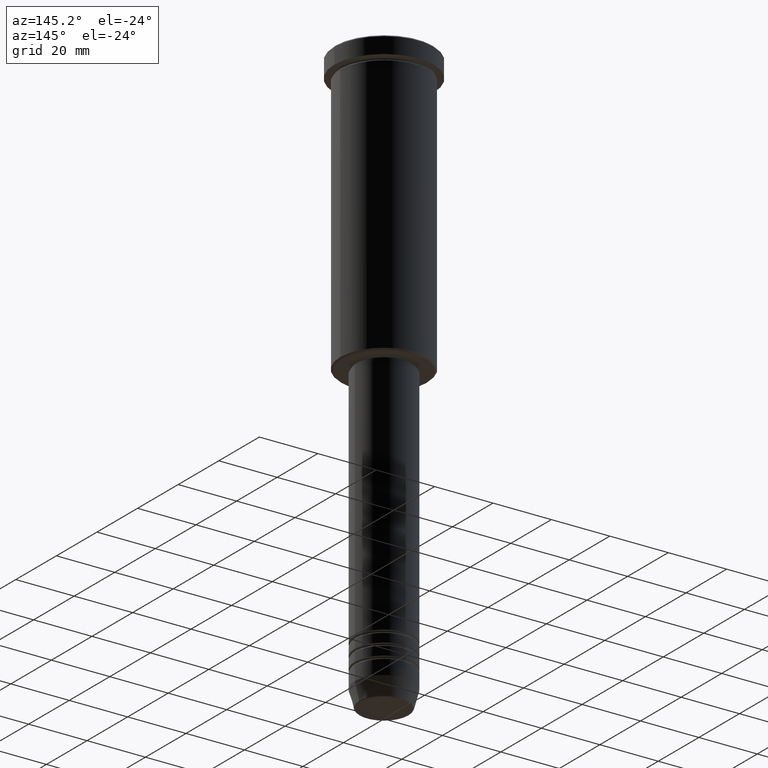
[diagram: clean part render]
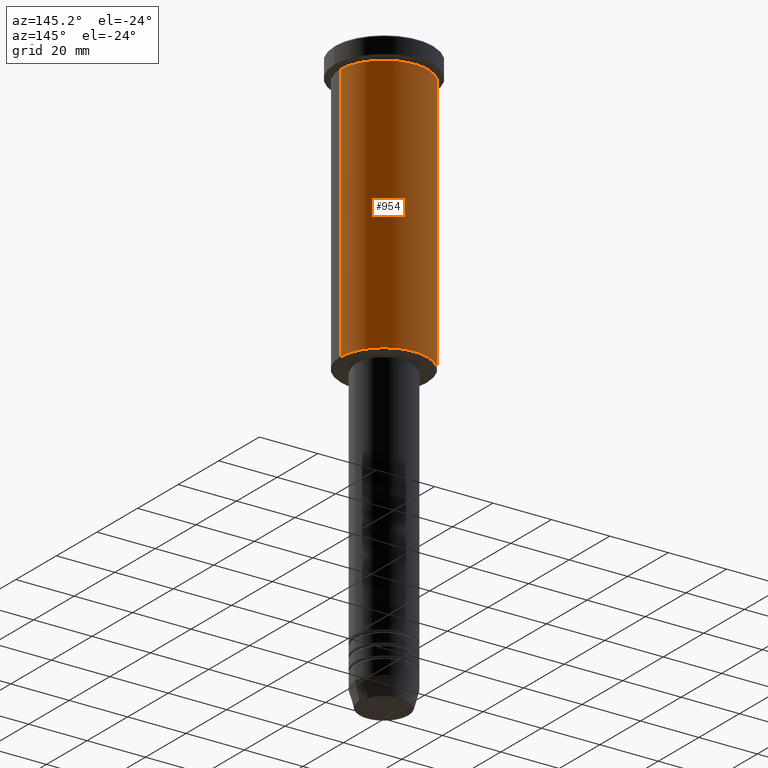
[diagram: same view with one face highlighted and labeled with its STEP entity id]
A machine part, auxiliary view. The second image highlights one B-rep face of the part: STEP entity #954.
In plain terms, the highlighted cylindrical surface (partial cylindrical patch) has radius 15 mm, axis along (-0, -0, 1).
Its self-contained STEP definition (entity closure, byte-faithful):
#9 = CARTESIAN_POINT ( 'NONE',  ( 15.00000000000000000, 0.000000000000000000, 0.000000000000000000 ) ) ;
#48 = EDGE_LOOP ( 'NONE', ( #701, #308, #918, #1110 ) ) ;
#49 = CYLINDRICAL_SURFACE ( 'NONE', #201, 15.00000000000000000 ) ;
#148 = CARTESIAN_POINT ( 'NONE',  ( 15.00000000000000000, 0.000000000000000000, -95.49999999999995737 ) ) ;
#179 = AXIS2_PLACEMENT_3D ( 'NONE', #431, #415, #796 ) ;
#201 = AXIS2_PLACEMENT_3D ( 'NONE', #603, #789, #249 ) ;
#203 = VERTEX_POINT ( 'NONE', #917 ) ;
#219 = VERTEX_POINT ( 'NONE', #269 ) ;
#220 = CARTESIAN_POINT ( 'NONE',  ( -15.00000000000000000, 1.836970198721029589E-15, -95.49999999999995737 ) ) ;
#249 = DIRECTION ( 'NONE',  ( 1.000000000000000000, 0.000000000000000000, 0.000000000000000000 ) ) ;
#269 = CARTESIAN_POINT ( 'NONE',  ( 15.00000000000000000, 0.000000000000000000, -6.999999999999995559 ) ) ;
#308 = ORIENTED_EDGE ( 'NONE', *, *, #802, .T. ) ;
#336 = VECTOR ( 'NONE', #467, 1000.000000000000000 ) ;
#350 = EDGE_CURVE ( 'NONE', #492, #219, #683, .T. ) ;
#415 = DIRECTION ( 'NONE',  ( -0.000000000000000000, -0.000000000000000000, 1.000000000000000000 ) ) ;
#431 = CARTESIAN_POINT ( 'NONE',  ( 0.000000000000000000, 0.000000000000000000, -6.999999999999995559 ) ) ;
#467 = DIRECTION ( 'NONE',  ( -0.000000000000000000, -0.000000000000000000, 1.000000000000000000 ) ) ;
#492 = VERTEX_POINT ( 'NONE', #148 ) ;
#595 = EDGE_CURVE ( 'NONE', #219, #203, #1037, .T. ) ;
#603 = CARTESIAN_POINT ( 'NONE',  ( 0.000000000000000000, 0.000000000000000000, 0.000000000000000000 ) ) ;
#651 = EDGE_CURVE ( 'NONE', #492, #817, #1072, .T. ) ;
#652 = CARTESIAN_POINT ( 'NONE',  ( -15.00000000000000000, 1.836970198721029589E-15, 0.000000000000000000 ) ) ;
#683 = LINE ( 'NONE', #9, #336 ) ;
#701 = ORIENTED_EDGE ( 'NONE', *, *, #651, .T. ) ;
#789 = DIRECTION ( 'NONE',  ( -0.000000000000000000, -0.000000000000000000, 1.000000000000000000 ) ) ;
#796 = DIRECTION ( 'NONE',  ( 1.000000000000000000, 0.000000000000000000, 0.000000000000000000 ) ) ;
#802 = EDGE_CURVE ( 'NONE', #817, #203, #933, .T. ) ;
#817 = VERTEX_POINT ( 'NONE', #220 ) ;
#823 = DIRECTION ( 'NONE',  ( -0.000000000000000000, -0.000000000000000000, 1.000000000000000000 ) ) ;
#825 = AXIS2_PLACEMENT_3D ( 'NONE', #1168, #823, #916 ) ;
#830 = DIRECTION ( 'NONE',  ( -0.000000000000000000, -0.000000000000000000, 1.000000000000000000 ) ) ;
#916 = DIRECTION ( 'NONE',  ( -1.000000000000000000, 0.000000000000000000, 0.000000000000000000 ) ) ;
#917 = CARTESIAN_POINT ( 'NONE',  ( -15.00000000000000000, 1.836970198721029589E-15, -6.999999999999995559 ) ) ;
#918 = ORIENTED_EDGE ( 'NONE', *, *, #595, .F. ) ;
#933 = LINE ( 'NONE', #652, #984 ) ;
#954 = ADVANCED_FACE ( 'NONE', ( #1050 ), #49, .T. ) ;
#984 = VECTOR ( 'NONE', #830, 1000.000000000000000 ) ;
#1037 = CIRCLE ( 'NONE', #179, 15.00000000000000000 ) ;
#1050 = FACE_OUTER_BOUND ( 'NONE', #48, .T. ) ;
#1072 = CIRCLE ( 'NONE', #825, 15.00000000000000000 ) ;
#1110 = ORIENTED_EDGE ( 'NONE', *, *, #350, .F. ) ;
#1168 = CARTESIAN_POINT ( 'NONE',  ( 0.000000000000000000, 0.000000000000000000, -95.49999999999995737 ) ) ;